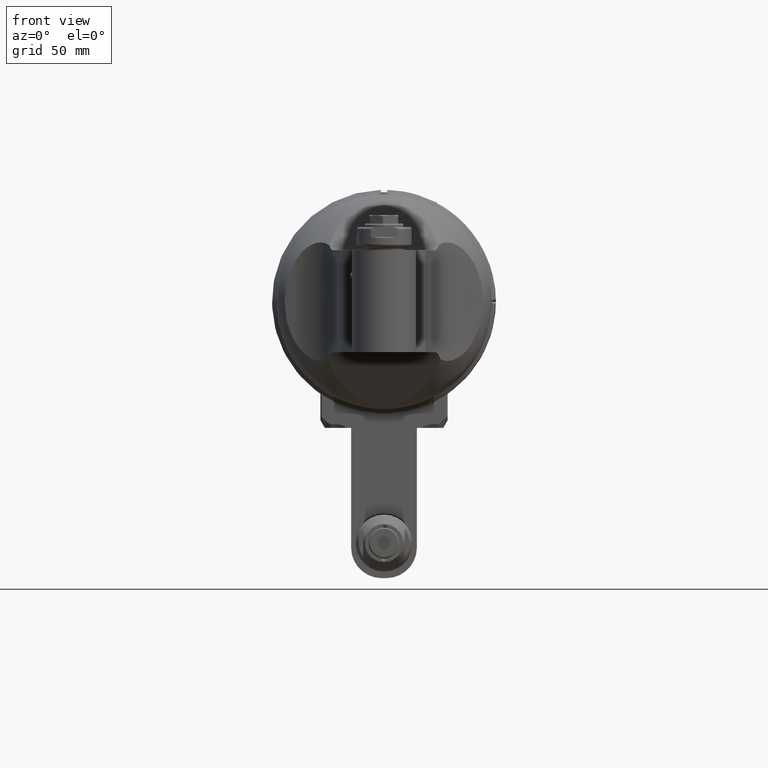
[diagram: clean part render]
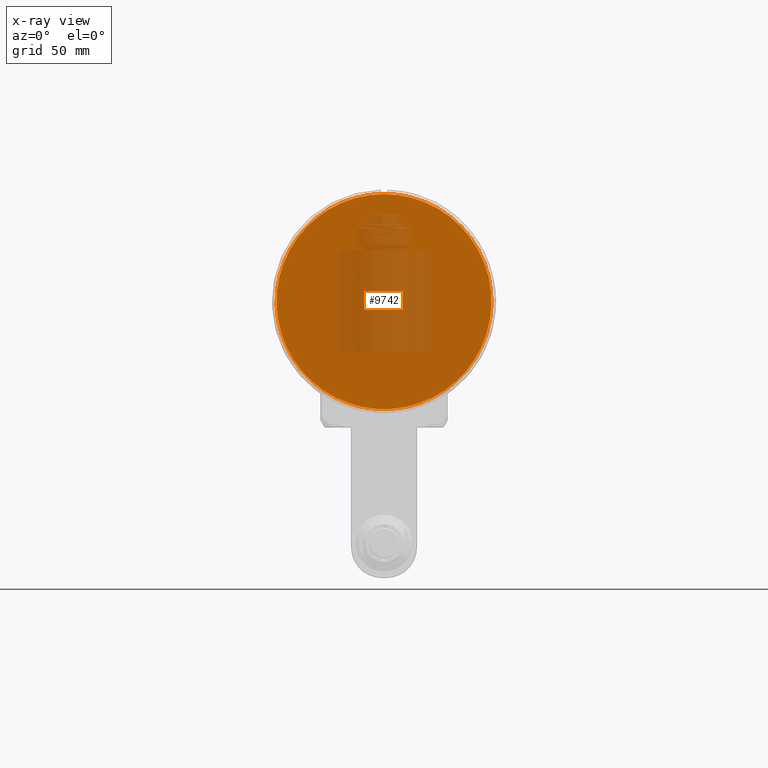
[diagram: x-ray — body ghosted, one internal face saturated and labeled with its STEP entity id]
A machine part, front view, then the same camera in x-ray: the body is ghosted and one INTERNAL B-rep face — a face not visible from any outside direction — is saturated and labeled: STEP entity #9742.
In plain terms, the highlighted planar face has unit normal (0, -1, 0).
Its self-contained STEP definition (entity closure, byte-faithful):
#324=FACE_BOUND('',#2996,.T.);
#2369=FACE_OUTER_BOUND('',#2995,.T.);
#2995=EDGE_LOOP('',(#8169));
#2996=EDGE_LOOP('',(#8170));
#3507=CIRCLE('',#10527,48.9);
#3594=CIRCLE('',#10749,49.);
#4286=VERTEX_POINT('',#18864);
#4433=VERTEX_POINT('',#19831);
#5466=EDGE_CURVE('',#4286,#4286,#3507,.T.);
#5730=EDGE_CURVE('',#4433,#4433,#3594,.T.);
#8169=ORIENTED_EDGE('',*,*,#5730,.T.);
#8170=ORIENTED_EDGE('',*,*,#5466,.F.);
#9255=PLANE('',#10748);
#9742=ADVANCED_FACE('',(#2369,#324),#9255,.F.);
#10527=AXIS2_PLACEMENT_3D('',#18865,#12575,#12576);
#10748=AXIS2_PLACEMENT_3D('',#19830,#13149,#13150);
#10749=AXIS2_PLACEMENT_3D('',#19832,#13151,#13152);
#12575=DIRECTION('center_axis',(0.,1.,0.));
#12576=DIRECTION('ref_axis',(0.,0.,1.));
#13149=DIRECTION('center_axis',(0.,-1.,0.));
#13150=DIRECTION('ref_axis',(0.,0.,1.));
#13151=DIRECTION('center_axis',(0.,1.,0.));
#13152=DIRECTION('ref_axis',(0.,0.,-1.));
#18864=CARTESIAN_POINT('',(0.,103.7835854665,-48.9));
#18865=CARTESIAN_POINT('Origin',(0.,103.7835854665,0.));
#19830=CARTESIAN_POINT('Origin',(0.,103.7835854665,0.));
#19831=CARTESIAN_POINT('',(-1.023824330266E-14,103.7835854665,49.));
#19832=CARTESIAN_POINT('Origin',(0.,103.7835854665,0.));